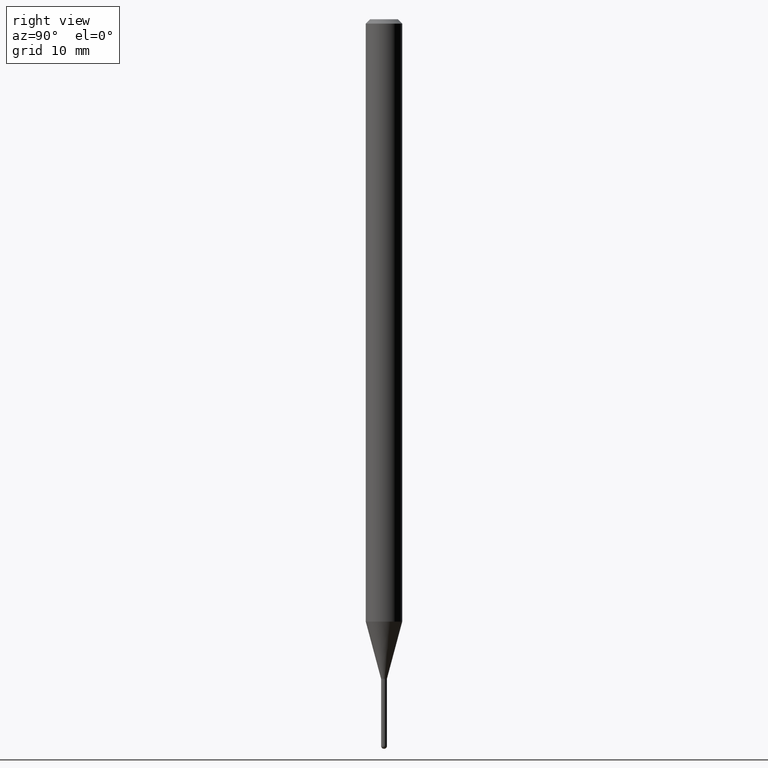
[diagram: clean part render]
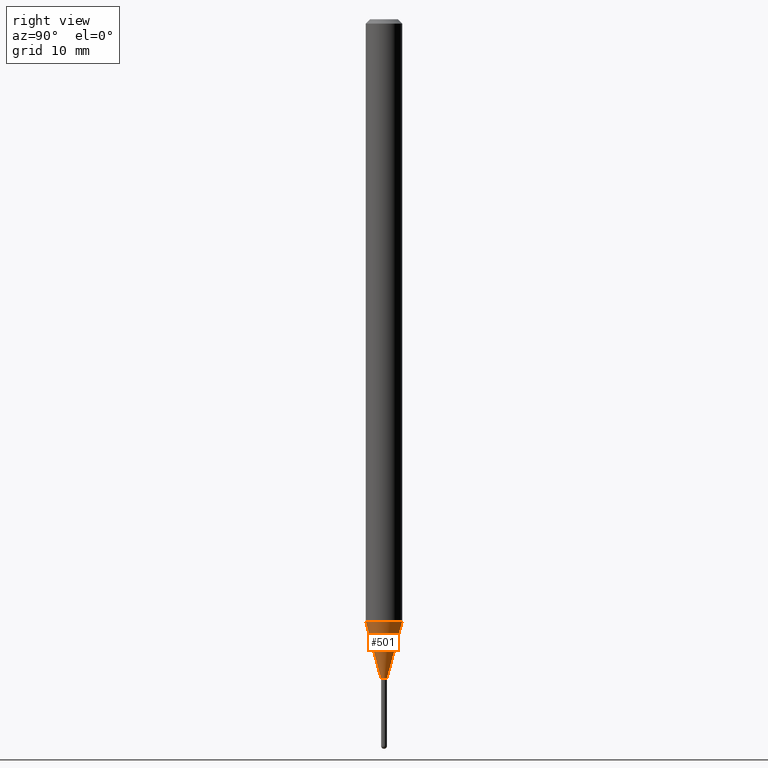
[diagram: same view with one face highlighted and labeled with its STEP entity id]
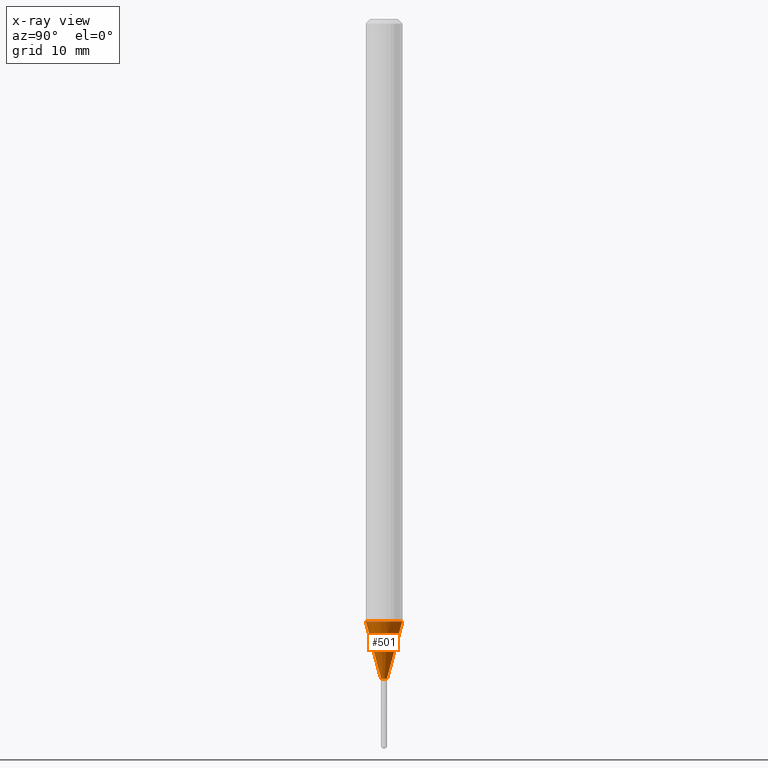
[diagram: x-ray of the same camera — body ghosted, the highlighted face saturated]
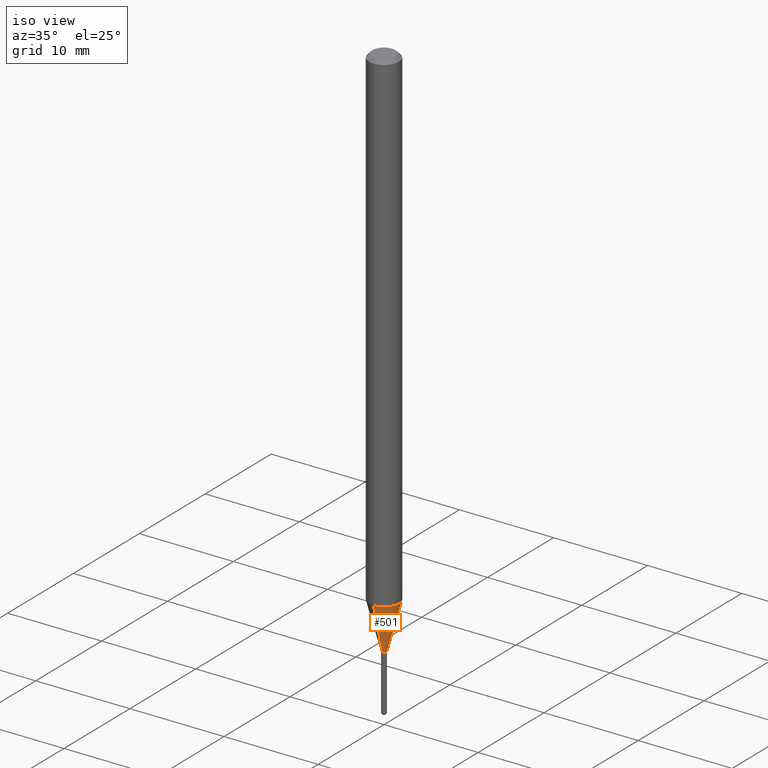
[diagram: same view with one face highlighted and labeled with its STEP entity id]
A machine part, right view. The second image highlights one B-rep face of the part: STEP entity #501.
The next image is the same camera in x-ray: the body ghosted, the highlighted face saturated — about 0% of this face is hidden behind the body in this view.
A second angle (iso view) of the same face is appended — the face is thin or edge-on in the first view.
In plain terms, the highlighted conical surface has half-angle 15 deg.
Its self-contained STEP definition (entity closure, byte-faithful):
#12 = AXIS2_PLACEMENT_3D ( 'NONE', #381, #341, #190 ) ;
#13 = LINE ( 'NONE', #252, #112 ) ;
#15 = EDGE_CURVE ( 'NONE', #294, #26, #480, .T. ) ;
#26 = VERTEX_POINT ( 'NONE', #325 ) ;
#41 = EDGE_LOOP ( 'NONE', ( #311, #358, #193, #265 ) ) ;
#43 = CARTESIAN_POINT ( 'NONE',  ( 2.575717417130880686E-16, 0.009999999999991756802, -2.260000000000000231 ) ) ;
#60 = DIRECTION ( 'NONE',  ( -2.445506458260102306E-29, 3.491427418928771548E-15, 1.000000000000000000 ) ) ;
#96 = CARTESIAN_POINT ( 'NONE',  ( 5.047689992163456778E-29, -7.206541279564027656E-15, -2.064067332602639304 ) ) ;
#106 = VERTEX_POINT ( 'NONE', #116 ) ;
#112 = VECTOR ( 'NONE', #450, 39.37007874015748854 ) ;
#116 = CARTESIAN_POINT ( 'NONE',  ( 4.440892098501130047E-16, 0.06249999999999279743, -2.064067332602639304 ) ) ;
#124 = DIRECTION ( 'NONE',  ( -2.445506458260102306E-29, 3.491427418928771548E-15, 1.000000000000000000 ) ) ;
#131 = EDGE_CURVE ( 'NONE', #487, #106, #13, .T. ) ;
#166 = CIRCLE ( 'NONE', #439, 0.06250000000000000000 ) ;
#167 = CIRCLE ( 'NONE', #12, 0.009999999999999648059 ) ;
#190 = DIRECTION ( 'NONE',  ( -6.982962677686265922E-15, -1.000000000000000000, 0.000000000000000000 ) ) ;
#193 = ORIENTED_EDGE ( 'NONE', *, *, #235, .F. ) ;
#202 = CARTESIAN_POINT ( 'NONE',  ( -6.982962677680492249E-17, -0.01000000000000753758, -2.260000000000000231 ) ) ;
#213 = AXIS2_PLACEMENT_3D ( 'NONE', #402, #124, #394 ) ;
#235 = EDGE_CURVE ( 'NONE', #26, #106, #166, .T. ) ;
#239 = FACE_OUTER_BOUND ( 'NONE', #41, .T. ) ;
#252 = CARTESIAN_POINT ( 'NONE',  ( 7.105427357606277514E-17, 0.009999999999991756802, -2.260000000000000231 ) ) ;
#265 = ORIENTED_EDGE ( 'NONE', *, *, #15, .F. ) ;
#294 = VERTEX_POINT ( 'NONE', #451 ) ;
#311 = ORIENTED_EDGE ( 'NONE', *, *, #433, .T. ) ;
#325 = CARTESIAN_POINT ( 'NONE',  ( -4.364351673553413302E-16, -0.06250000000000721645, -2.064067332602638860 ) ) ;
#327 = DIRECTION ( 'NONE',  ( -6.982962677686265922E-15, -1.000000000000000000, 4.370956789862821150E-15 ) ) ;
#341 = DIRECTION ( 'NONE',  ( -2.445506458260102306E-29, 3.491427418928771548E-15, 1.000000000000000000 ) ) ;
#358 = ORIENTED_EDGE ( 'NONE', *, *, #131, .T. ) ;
#381 = CARTESIAN_POINT ( 'NONE',  ( 5.526844595667831878E-29, -7.890625966779025039E-15, -2.260000000000000231 ) ) ;
#390 = CONICAL_SURFACE ( 'NONE', #213, 0.009999999999999648059, 0.2617993877991575125 ) ;
#394 = DIRECTION ( 'NONE',  ( -6.982962677686265922E-15, -1.000000000000000000, 0.000000000000000000 ) ) ;
#402 = CARTESIAN_POINT ( 'NONE',  ( 5.526844595667831878E-29, -7.890625966779025039E-15, -2.260000000000000231 ) ) ;
#403 = DIRECTION ( 'NONE',  ( -1.807323732225379049E-15, -0.2588190451025252359, 0.9659258262890670910 ) ) ;
#433 = EDGE_CURVE ( 'NONE', #294, #487, #167, .T. ) ;
#439 = AXIS2_PLACEMENT_3D ( 'NONE', #96, #60, #327 ) ;
#450 = DIRECTION ( 'NONE',  ( 1.839019923739649619E-15, 0.2588190451025318972, 0.9659258262890650926 ) ) ;
#451 = CARTESIAN_POINT ( 'NONE',  ( -6.982962677680492249E-17, -0.01000000000000753758, -2.260000000000000231 ) ) ;
#480 = LINE ( 'NONE', #202, #506 ) ;
#487 = VERTEX_POINT ( 'NONE', #43 ) ;
#501 = ADVANCED_FACE ( 'NONE', ( #239 ), #390, .T. ) ;
#506 = VECTOR ( 'NONE', #403, 39.37007874015748854 ) ;